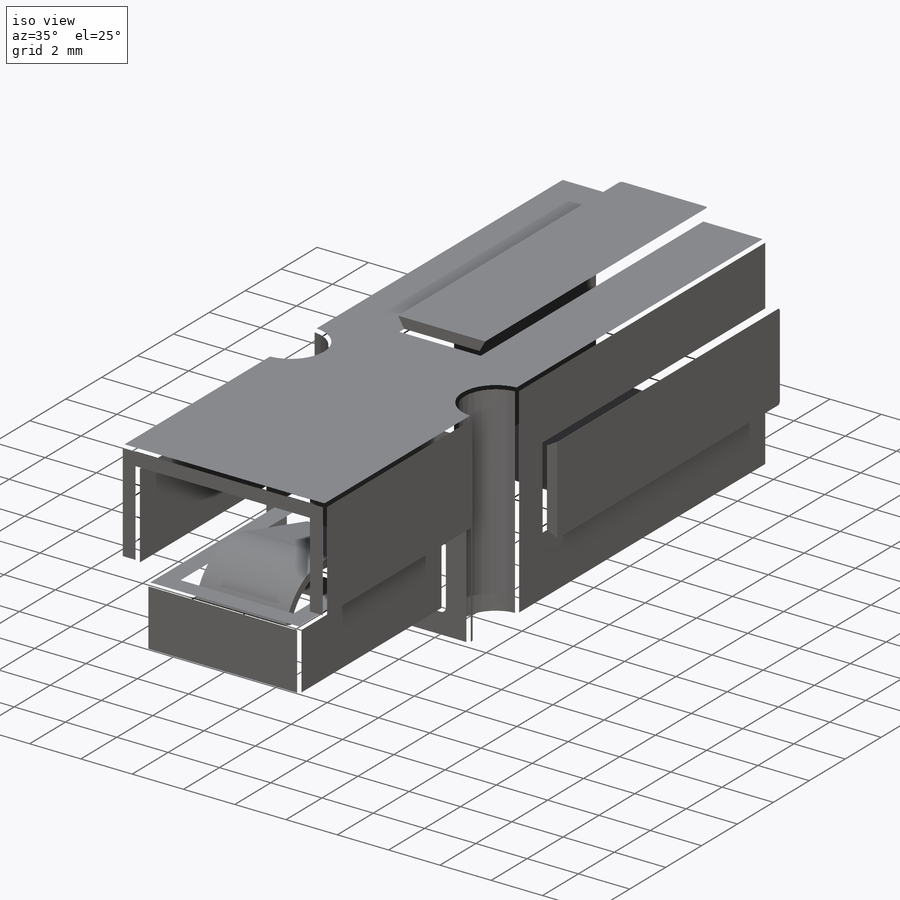
[diagram: iso view]
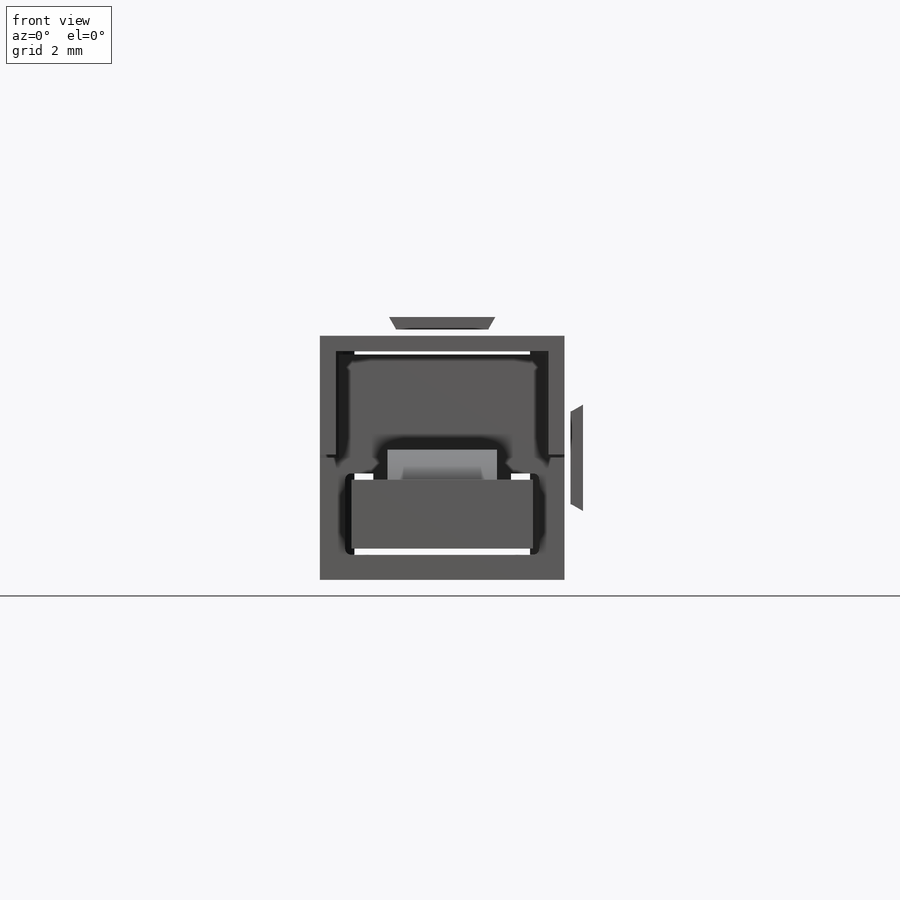
[diagram: front view]
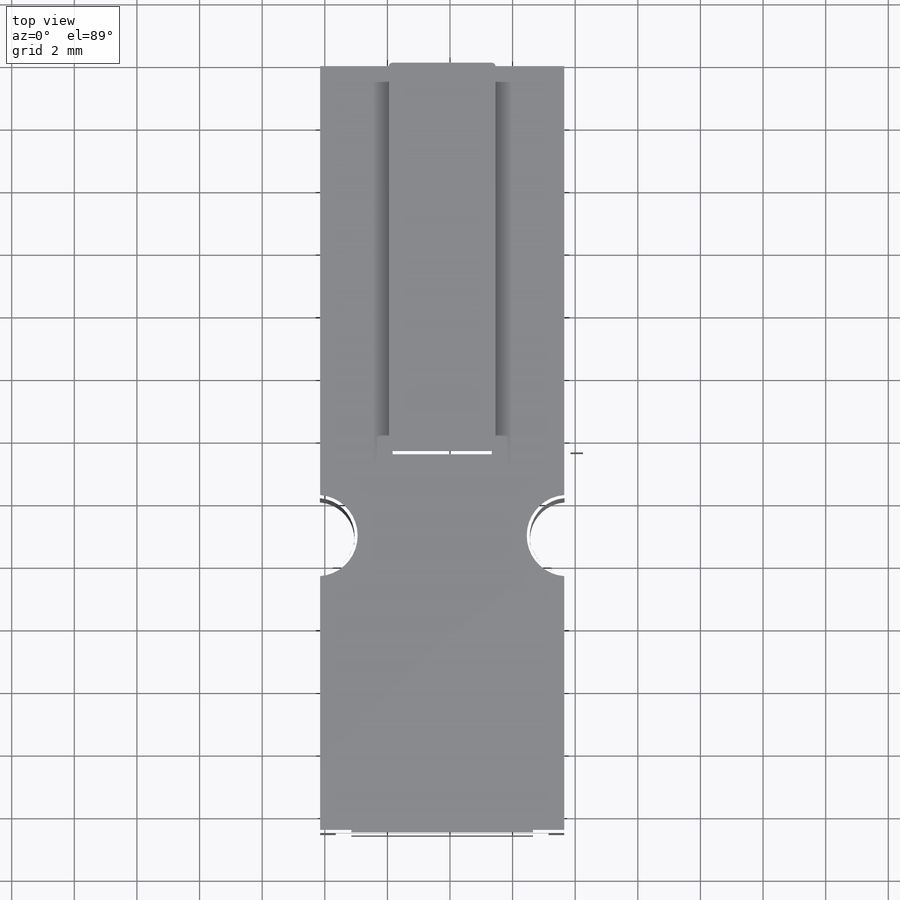
[diagram: top view]
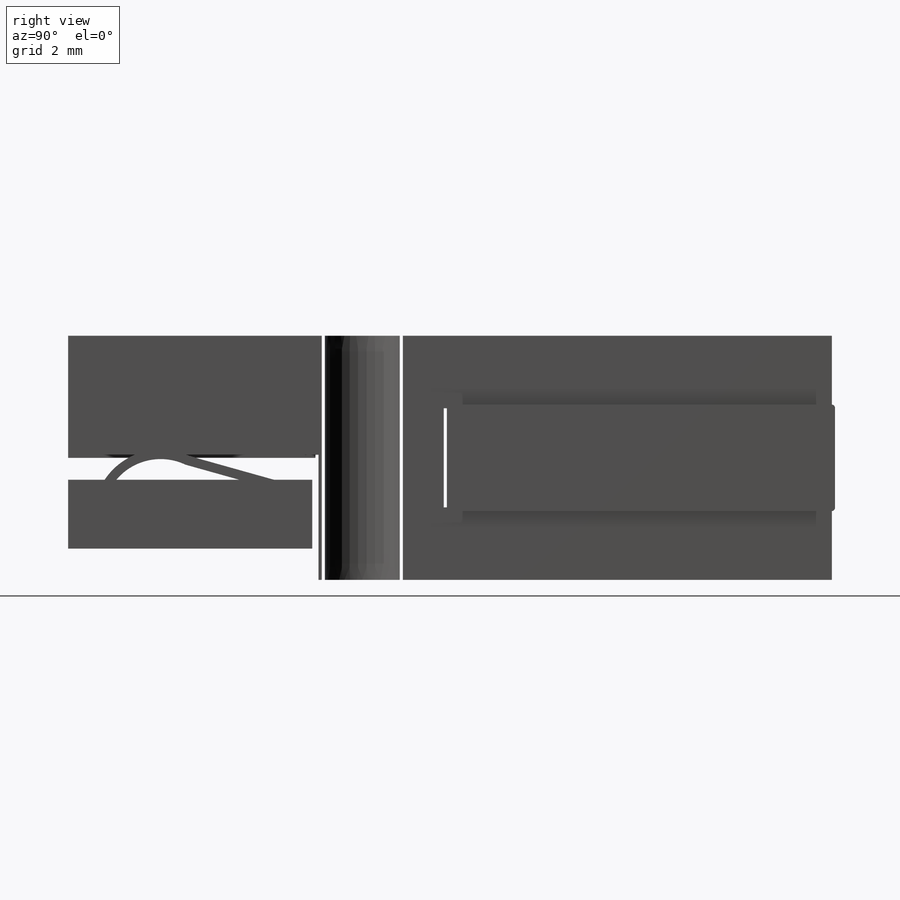
[diagram: right view]
SOLIDWORKS PART (.sldprt)
format: sldprt  version: not decoded by parser v0  size: 1,764,352 bytes
history: native  units: mm
features: sketch x16, cut_extrude x12, plane x4, extrude x2, material x1, fillet x1 (+9 scaffold rows collapsed)
feature tree (45):
  scaffold x9  (default folders/planes/origin — collapsed)
  material  "Material <not specified>"
  plane  "Face"
  plane  "Dessus"
  plane  "Droite"
  sketch  "Esquisse1"  dims[c1.D1=~12.706388mm c1.D2=~12.706388mm c2.D1=~12.706388mm c2.D2=~11.511771mm c2.D3=~11.511771mm c3.D2=~11.511771mm c3.D1=8.5mm c4.D2=8.5mm]
  extrude  "Extrusion1"  Depth=24.6mm
  sketch  "Esquisse6"  dims[D1=3.4mm D2=0.5mm D3=2.3mm]
  cut_extrude  "Enlèv. mat.-Extru.4"  [1 undecoded]
  sketch  "Esquisse2"  dims[c1.D1=3.4mm c1.D2=0.5mm c1.D3=0.5mm c1.D4=3.4mm c1.D5=0.5mm c2.D2=0.5mm c2.D1=2.3mm]
  cut_extrude  "Enlèv. mat.-Extru.1"  [1 undecoded]
  sketch  "Esquisse4"  dims[D1=2.4mm D2=9.5mm]
  cut_extrude  "Enlèv. mat.-Extru.3"  [1 undecoded]
  sketch  "Esquisse11"
  cut_extrude  "Enlèv. mat.-Extru.9"  Depth=12.2mm
  sketch  "Esquisse5"  dims[D1=1.0mm D2=1.0mm D3=4.0mm]
  cut_extrude  "Enlèv. mat.-Extru.5"  Depth=8mm
  sketch  "Esquisse7"  dims[c1.D1=0.7mm c1.D2=2.4mm c2.D1=0.7mm c2.D3=0.7mm c2.D4=0.7mm]
  cut_extrude  "Enlèv. mat.-Extru.6"  [1 undecoded]
  sketch  "Esquisse8"  dims[D1=1.4mm D2=1.4mm D3=1.4mm D4=1.4mm]
  cut_extrude  "Enlèv. mat.-Extru.7"  Depth=8mm
  sketch  "Esquisse9"  dims[c1.D1=~0.55606mm c2.D1=60.0deg c2.D2=~0.284283mm c3.D2=60.0deg]
  cut_extrude  "Enlèv. mat.-Extru.8"  Depth=13mm
  sketch  "Esquisse10"
  sketch  "Esquisse12"
  cut_extrude  "Enlèv. mat.-Extru.10"  [1 undecoded]
  plane  "Plan1"  Offset=0.25mm
  sketch  "Esquisse14"  dims[D1=0.8mm]
  cut_extrude  "Enlèv. mat.-Extru.11"  Depth=1.75mm
  sketch  "Esquisse13"  dims[D1=0.3mm]
  extrude  "Extrusion2"  Depth=1.75mm
  sketch  "Esquisse15"  dims[D1=0.0mm]
  cut_extrude  "Enlèv. mat.-Extru.12"  [1 undecoded]
  sketch  "Esquisse16"
  fillet  "Fillet1"  Radius=0.1mm
  sketch  "Sketch1"  dims[D1=4.0mm]
  cut_extrude  "Cut-Extrude1"  Depth=1mm
decode coverage: 21 of 31 modeling features carry decoded parameters
note: ~ marks probable driven/reference dimensions
note: 6 parameter values undecoded
summary: no parameter record found for 6 features
note: suppression state not decoded; provenance and decode notes live in map.json
